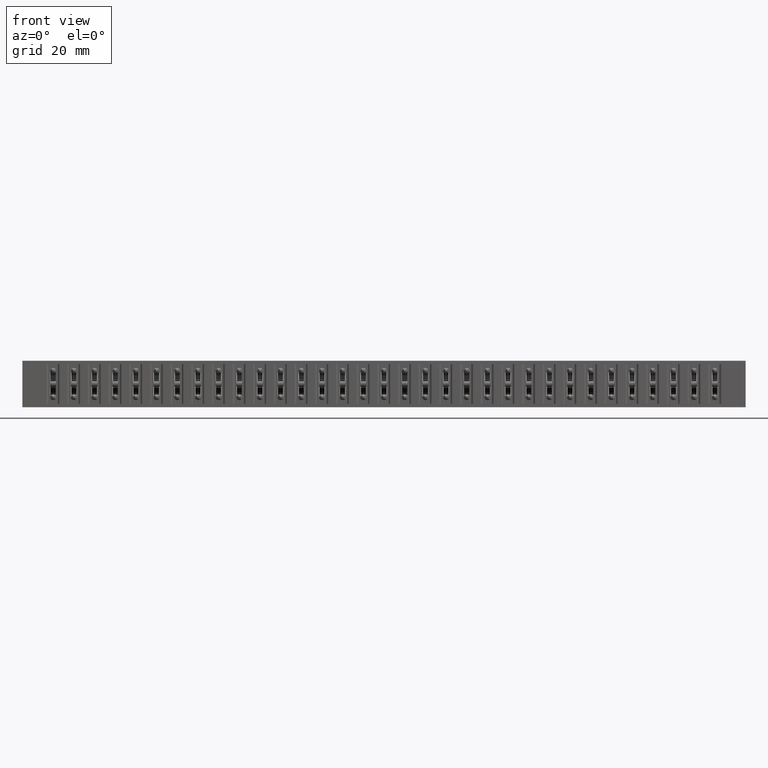
[diagram: clean part render]
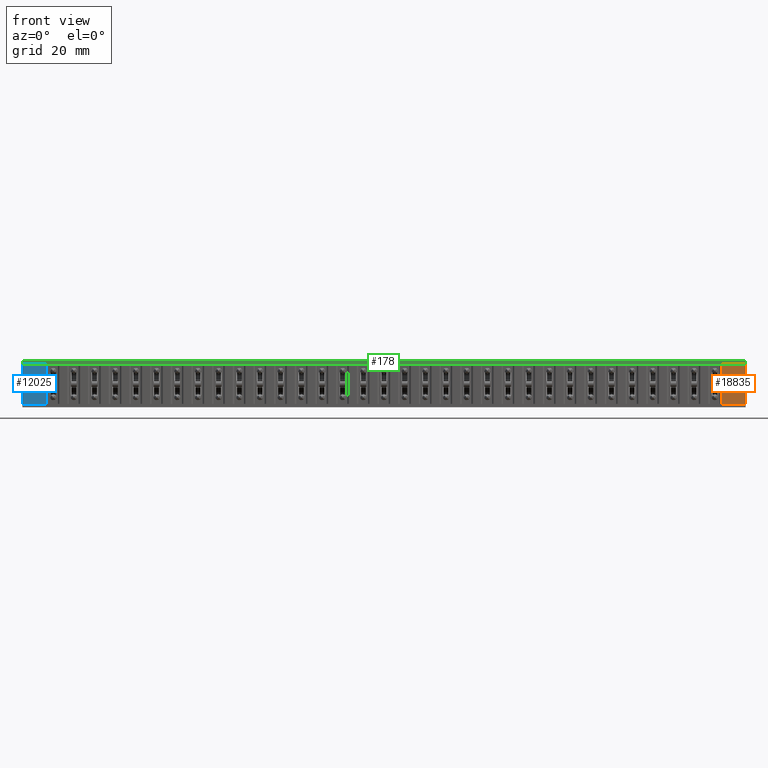
[diagram: same view with three faces highlighted in distinct colors, each labeled with its STEP entity id]
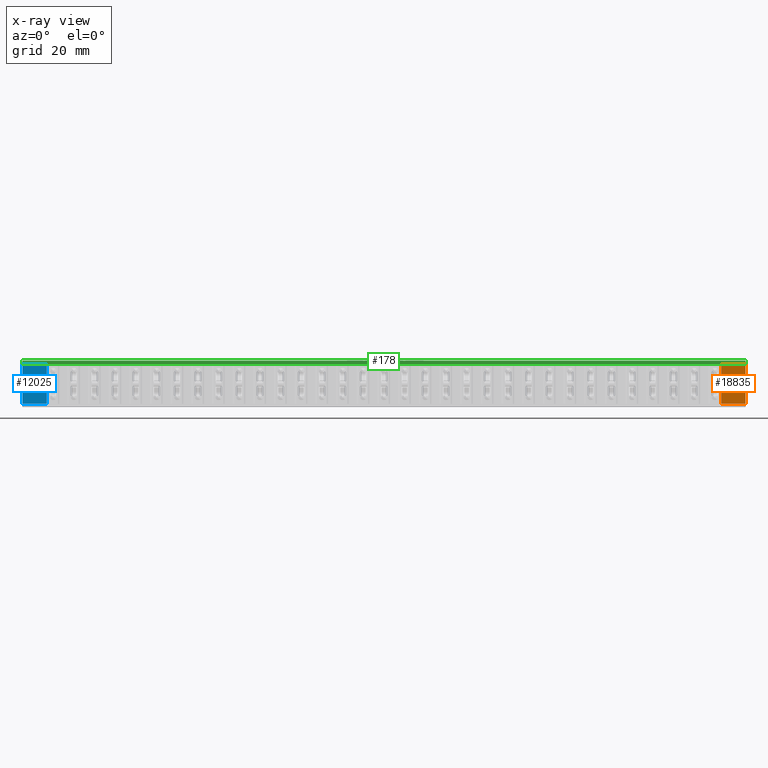
[diagram: x-ray of the same camera — body ghosted, the three highlighted faces saturated]
A machine part, front view with three faces highlighted in distinct colors.
The next image is the same camera in x-ray (body ghosted, the three faces saturated) — at least one of them is partly hidden behind the body in this view.
Their STEP definitions:

[orange] entity #18835 — the highlighted planar face has unit normal (0, -1, 0).
#1220 = VECTOR ( 'NONE', #25122, 39.37007874015748100 ) ;
#1565 = CARTESIAN_POINT ( 'NONE',  ( 0.0000000000000000000, 0.0000000000000000000, -0.3499999999999999800 ) ) ;
#3741 = DIRECTION ( 'NONE',  ( 0.0000000000000000000, 0.0000000000000000000, -1.000000000000000000 ) ) ;
#5782 = EDGE_CURVE ( 'NONE', #17345, #16379, #34265, .T. ) ;
#5800 = ORIENTED_EDGE ( 'NONE', *, *, #5782, .T. ) ;
#8581 = LINE ( 'NONE', #35562, #32461 ) ;
#8612 = CARTESIAN_POINT ( 'NONE',  ( 5.275999999999998900, 0.0000000000000000000, -0.02500000000000000500 ) ) ;
#10411 = DIRECTION ( 'NONE',  ( 0.0000000000000000000, -1.000000000000000000, 0.0000000000000000000 ) ) ;
#15495 = CARTESIAN_POINT ( 'NONE',  ( 5.458000000000000200, 0.0000000000000000000, -0.02500000000000000500 ) ) ;
#16379 = VERTEX_POINT ( 'NONE', #8612 ) ;
#17345 = VERTEX_POINT ( 'NONE', #33835 ) ;
#18835 = ADVANCED_FACE ( 'NONE', ( #36679 ), #32780, .T. ) ;
#22323 = EDGE_CURVE ( 'NONE', #37129, #42578, #25827, .T. ) ;
#25122 = DIRECTION ( 'NONE',  ( -1.000000000000000000, -0.0000000000000000000, -0.0000000000000000000 ) ) ;
#25827 = LINE ( 'NONE', #49060, #45370 ) ;
#26449 = ORIENTED_EDGE ( 'NONE', *, *, #27332, .F. ) ;
#26611 = CARTESIAN_POINT ( 'NONE',  ( 5.275999999999998900, 0.0000000000000000000, -0.3249999999999999600 ) ) ;
#27332 = EDGE_CURVE ( 'NONE', #17345, #37129, #8581, .T. ) ;
#28993 = EDGE_LOOP ( 'NONE', ( #5800, #31439, #30766, #26449 ) ) ;
#30766 = ORIENTED_EDGE ( 'NONE', *, *, #22323, .F. ) ;
#31049 = DIRECTION ( 'NONE',  ( -1.000000000000000000, -0.0000000000000000000, -0.0000000000000000000 ) ) ;
#31439 = ORIENTED_EDGE ( 'NONE', *, *, #56400, .F. ) ;
#32461 = VECTOR ( 'NONE', #3741, 39.37007874015748100 ) ;
#32780 = PLANE ( 'NONE',  #40490 ) ;
#33835 = CARTESIAN_POINT ( 'NONE',  ( 5.458000000000000200, 0.0000000000000000000, -0.02500000000000000500 ) ) ;
#34265 = LINE ( 'NONE', #15495, #1220 ) ;
#35562 = CARTESIAN_POINT ( 'NONE',  ( 5.458000000000000200, 0.0000000000000000000, 0.0000000000000000000 ) ) ;
#35574 = CARTESIAN_POINT ( 'NONE',  ( 5.458000000000000200, 0.0000000000000000000, -0.3249999999999999600 ) ) ;
#35778 = CARTESIAN_POINT ( 'NONE',  ( 5.275999999999998900, 0.0000000000000000000, -0.3499999999999999800 ) ) ;
#36679 = FACE_OUTER_BOUND ( 'NONE', #28993, .T. ) ;
#37129 = VERTEX_POINT ( 'NONE', #35574 ) ;
#38268 = LINE ( 'NONE', #35778, #45200 ) ;
#40490 = AXIS2_PLACEMENT_3D ( 'NONE', #1565, #10411, #41775 ) ;
#41775 = DIRECTION ( 'NONE',  ( 0.0000000000000000000, -0.0000000000000000000, -1.000000000000000000 ) ) ;
#42578 = VERTEX_POINT ( 'NONE', #26611 ) ;
#43979 = DIRECTION ( 'NONE',  ( -0.0000000000000000000, -0.0000000000000000000, 1.000000000000000000 ) ) ;
#45200 = VECTOR ( 'NONE', #43979, 39.37007874015748100 ) ;
#45370 = VECTOR ( 'NONE', #31049, 39.37007874015748100 ) ;
#49060 = CARTESIAN_POINT ( 'NONE',  ( 5.458000000000000200, 0.0000000000000000000, -0.3249999999999999600 ) ) ;
#56400 = EDGE_CURVE ( 'NONE', #42578, #16379, #38268, .T. ) ;

[blue] entity #12025 — the highlighted planar face has unit normal (0, -1, 0).
#695 = LINE ( 'NONE', #13894, #45611 ) ;
#3776 = EDGE_CURVE ( 'NONE', #54683, #18570, #695, .T. ) ;
#8432 = VECTOR ( 'NONE', #48785, 39.37007874015748100 ) ;
#8792 = EDGE_CURVE ( 'NONE', #21829, #36397, #24780, .T. ) ;
#9002 = LINE ( 'NONE', #45356, #31496 ) ;
#12025 = ADVANCED_FACE ( 'NONE', ( #14304 ), #51371, .T. ) ;
#13894 = CARTESIAN_POINT ( 'NONE',  ( 5.458000000000000200, 0.0000000000000000000, -0.3249999999999999600 ) ) ;
#14304 = FACE_OUTER_BOUND ( 'NONE', #55555, .T. ) ;
#15583 = ORIENTED_EDGE ( 'NONE', *, *, #3776, .F. ) ;
#17996 = AXIS2_PLACEMENT_3D ( 'NONE', #42919, #51946, #20451 ) ;
#18570 = VERTEX_POINT ( 'NONE', #26590 ) ;
#20451 = DIRECTION ( 'NONE',  ( 0.0000000000000000000, -0.0000000000000000000, -1.000000000000000000 ) ) ;
#21829 = VERTEX_POINT ( 'NONE', #40851 ) ;
#24337 = EDGE_CURVE ( 'NONE', #18570, #36397, #9002, .T. ) ;
#24780 = LINE ( 'NONE', #30278, #38071 ) ;
#26590 = CARTESIAN_POINT ( 'NONE',  ( 0.0000000000000000000, 0.0000000000000000000, -0.3249999999999999600 ) ) ;
#26908 = DIRECTION ( 'NONE',  ( -1.000000000000000000, -0.0000000000000000000, -0.0000000000000000000 ) ) ;
#27402 = DIRECTION ( 'NONE',  ( -0.0000000000000000000, -0.0000000000000000000, 1.000000000000000000 ) ) ;
#30278 = CARTESIAN_POINT ( 'NONE',  ( 5.458000000000000200, 0.0000000000000000000, -0.02500000000000000500 ) ) ;
#31496 = VECTOR ( 'NONE', #27402, 39.37007874015748100 ) ;
#34998 = DIRECTION ( 'NONE',  ( -1.000000000000000000, -0.0000000000000000000, -0.0000000000000000000 ) ) ;
#36397 = VERTEX_POINT ( 'NONE', #51293 ) ;
#36800 = ORIENTED_EDGE ( 'NONE', *, *, #8792, .T. ) ;
#38071 = VECTOR ( 'NONE', #34998, 39.37007874015748100 ) ;
#40851 = CARTESIAN_POINT ( 'NONE',  ( 0.1819999999999999400, 0.0000000000000000000, -0.02500000000000000500 ) ) ;
#41076 = ORIENTED_EDGE ( 'NONE', *, *, #43996, .T. ) ;
#42919 = CARTESIAN_POINT ( 'NONE',  ( 0.0000000000000000000, 0.0000000000000000000, -0.3499999999999999800 ) ) ;
#43996 = EDGE_CURVE ( 'NONE', #54683, #21829, #52656, .T. ) ;
#44046 = ORIENTED_EDGE ( 'NONE', *, *, #24337, .F. ) ;
#45356 = CARTESIAN_POINT ( 'NONE',  ( 0.0000000000000000000, 0.0000000000000000000, 0.0000000000000000000 ) ) ;
#45611 = VECTOR ( 'NONE', #26908, 39.37007874015748100 ) ;
#48785 = DIRECTION ( 'NONE',  ( -0.0000000000000000000, -0.0000000000000000000, 1.000000000000000000 ) ) ;
#51293 = CARTESIAN_POINT ( 'NONE',  ( 0.0000000000000000000, 0.0000000000000000000, -0.02500000000000000500 ) ) ;
#51371 = PLANE ( 'NONE',  #17996 ) ;
#51900 = CARTESIAN_POINT ( 'NONE',  ( 0.1819999999999999400, 0.0000000000000000000, -0.3249999999999999600 ) ) ;
#51946 = DIRECTION ( 'NONE',  ( 0.0000000000000000000, -1.000000000000000000, 0.0000000000000000000 ) ) ;
#52656 = LINE ( 'NONE', #52901, #8432 ) ;
#52901 = CARTESIAN_POINT ( 'NONE',  ( 0.1819999999999999400, 0.0000000000000000000, -0.3499999999999999800 ) ) ;
#54683 = VERTEX_POINT ( 'NONE', #51900 ) ;
#55555 = EDGE_LOOP ( 'NONE', ( #15583, #41076, #36800, #44046 ) ) ;

[green] entity #178 — the highlighted planar face has unit normal (0, 1, 0).
#178 = ADVANCED_FACE ( 'NONE', ( #25838 ), #11421, .F. ) ;
#2114 = AXIS2_PLACEMENT_3D ( 'NONE', #2560, #25002, #51990 ) ;
#2560 = CARTESIAN_POINT ( 'NONE',  ( 5.458000000000000200, 0.1000000000000000100, 0.0000000000000000000 ) ) ;
#4100 = VECTOR ( 'NONE', #25221, 39.37007874015748100 ) ;
#4142 = CARTESIAN_POINT ( 'NONE',  ( 5.458000000000000200, 0.1000000000000000100, -0.02500000000000000500 ) ) ;
#4531 = DIRECTION ( 'NONE',  ( -1.000000000000000000, -0.0000000000000000000, -0.0000000000000000000 ) ) ;
#4809 = ORIENTED_EDGE ( 'NONE', *, *, #23185, .T. ) ;
#5302 = ORIENTED_EDGE ( 'NONE', *, *, #53019, .F. ) ;
#6967 = CARTESIAN_POINT ( 'NONE',  ( 5.458000000000000200, 0.1000000000000000100, 0.0000000000000000000 ) ) ;
#9329 = VECTOR ( 'NONE', #52957, 39.37007874015748100 ) ;
#11421 = PLANE ( 'NONE',  #2114 ) ;
#16430 = LINE ( 'NONE', #30825, #9329 ) ;
#16677 = EDGE_LOOP ( 'NONE', ( #4809, #5302, #50263, #36694 ) ) ;
#17821 = VERTEX_POINT ( 'NONE', #48230 ) ;
#18141 = VECTOR ( 'NONE', #38196, 39.37007874015748100 ) ;
#21270 = LINE ( 'NONE', #4142, #33176 ) ;
#21472 = EDGE_CURVE ( 'NONE', #46829, #53123, #44092, .T. ) ;
#23021 = CARTESIAN_POINT ( 'NONE',  ( 5.458000000000000200, 0.1000000000000000100, -0.02500000000000000500 ) ) ;
#23185 = EDGE_CURVE ( 'NONE', #55002, #17821, #56025, .T. ) ;
#25002 = DIRECTION ( 'NONE',  ( -0.0000000000000000000, 1.000000000000000000, 0.0000000000000000000 ) ) ;
#25221 = DIRECTION ( 'NONE',  ( 0.0000000000000000000, 0.0000000000000000000, -1.000000000000000000 ) ) ;
#25838 = FACE_OUTER_BOUND ( 'NONE', #16677, .T. ) ;
#30457 = CARTESIAN_POINT ( 'NONE',  ( 0.0000000000000000000, 0.1000000000000000100, 0.0000000000000000000 ) ) ;
#30825 = CARTESIAN_POINT ( 'NONE',  ( 5.458000000000000200, 0.1000000000000000100, 0.0000000000000000000 ) ) ;
#31650 = CARTESIAN_POINT ( 'NONE',  ( 5.458000000000000200, 0.1000000000000000100, 0.0000000000000000000 ) ) ;
#33176 = VECTOR ( 'NONE', #4531, 39.37007874015748100 ) ;
#36694 = ORIENTED_EDGE ( 'NONE', *, *, #42900, .T. ) ;
#38196 = DIRECTION ( 'NONE',  ( 0.0000000000000000000, 0.0000000000000000000, -1.000000000000000000 ) ) ;
#42900 = EDGE_CURVE ( 'NONE', #46829, #55002, #16430, .T. ) ;
#44092 = LINE ( 'NONE', #6967, #18141 ) ;
#46829 = VERTEX_POINT ( 'NONE', #31650 ) ;
#48230 = CARTESIAN_POINT ( 'NONE',  ( 0.0000000000000000000, 0.1000000000000000100, -0.02500000000000000500 ) ) ;
#50263 = ORIENTED_EDGE ( 'NONE', *, *, #21472, .F. ) ;
#51990 = DIRECTION ( 'NONE',  ( 0.0000000000000000000, -0.0000000000000000000, 1.000000000000000000 ) ) ;
#52957 = DIRECTION ( 'NONE',  ( -1.000000000000000000, -0.0000000000000000000, -0.0000000000000000000 ) ) ;
#53019 = EDGE_CURVE ( 'NONE', #53123, #17821, #21270, .T. ) ;
#53123 = VERTEX_POINT ( 'NONE', #23021 ) ;
#55002 = VERTEX_POINT ( 'NONE', #55367 ) ;
#55367 = CARTESIAN_POINT ( 'NONE',  ( 0.0000000000000000000, 0.1000000000000000100, 0.0000000000000000000 ) ) ;
#56025 = LINE ( 'NONE', #30457, #4100 ) ;